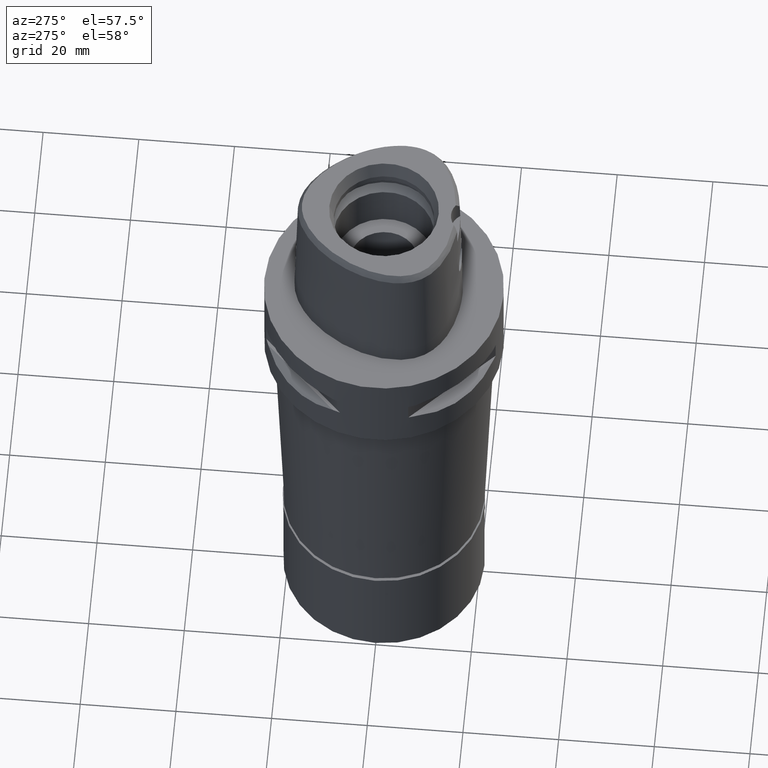
[diagram: clean part render]
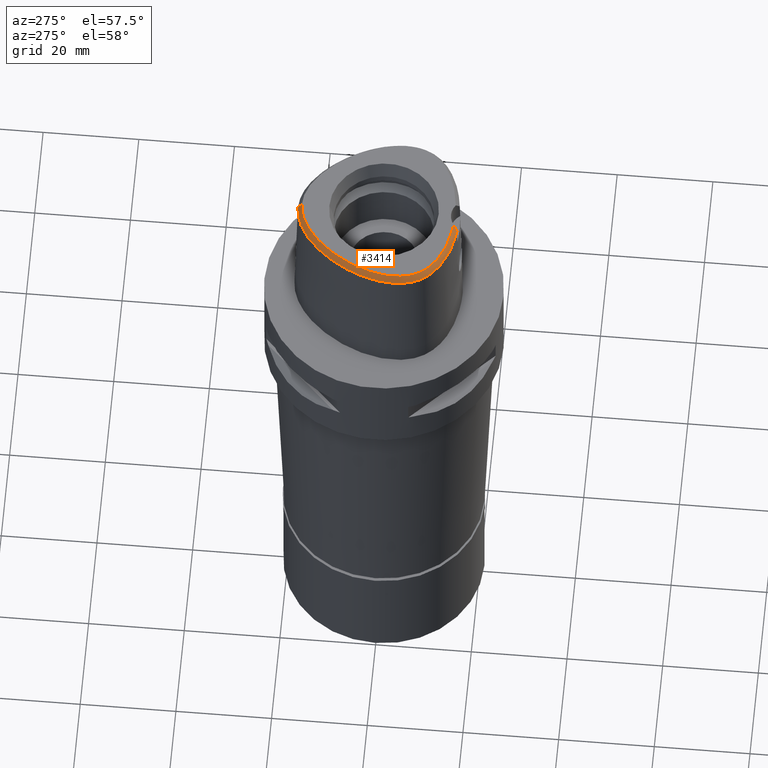
[diagram: same view with one face highlighted and labeled with its STEP entity id]
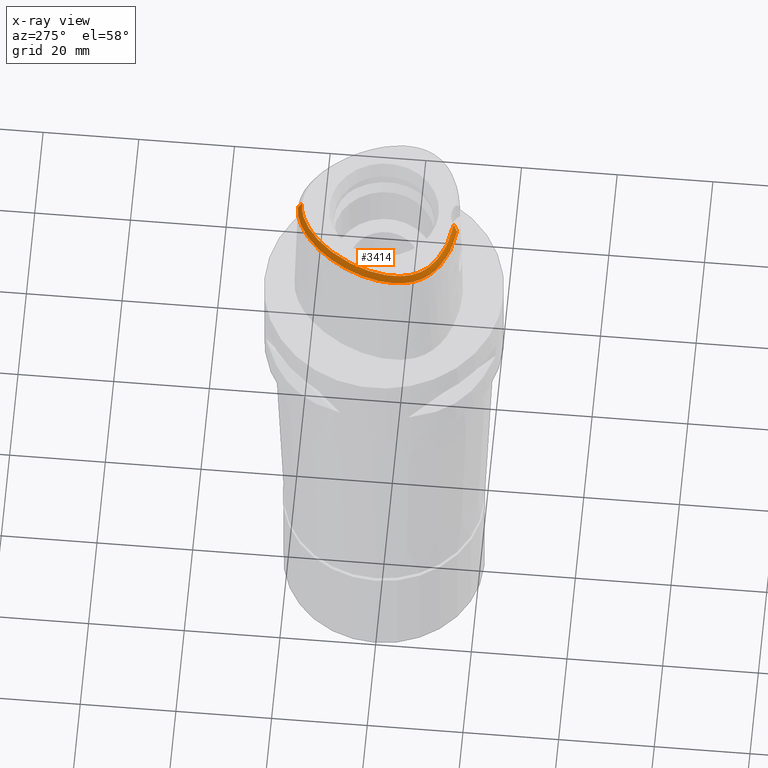
[diagram: x-ray of the same camera — body ghosted, the highlighted face saturated]
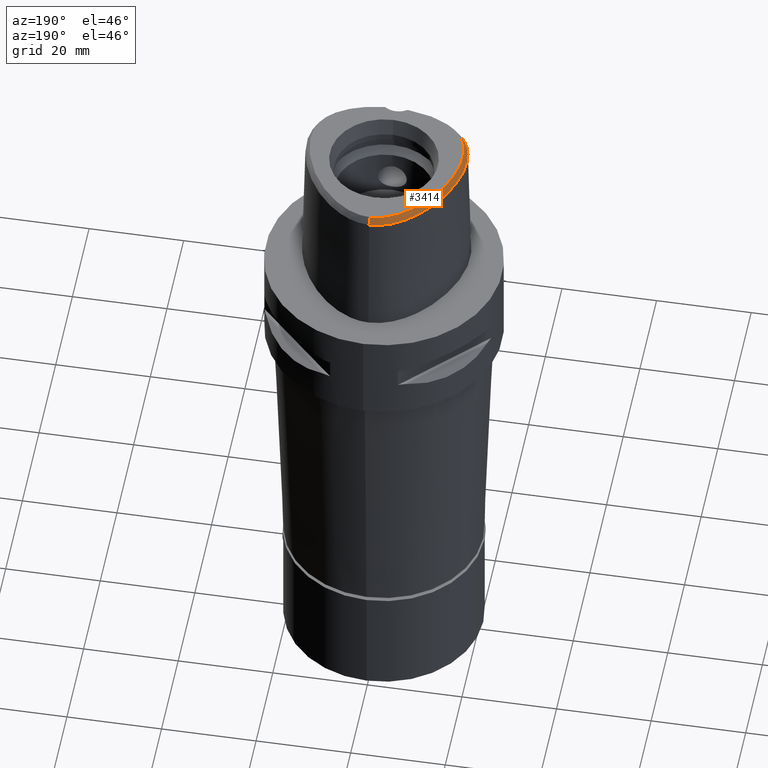
[diagram: same view with one face highlighted and labeled with its STEP entity id]
A machine part, auxiliary view. The second image highlights one B-rep face of the part: STEP entity #3414.
The next image is the same camera in x-ray: the body ghosted, the highlighted face saturated — about 0% of this face is hidden behind the body in this view.
A second angle (auxiliary view) of the same face is appended — the face is thin or edge-on in the first view.
In plain terms, the highlighted face is a freeform B-spline surface patch.
Its self-contained STEP definition (entity closure, byte-faithful):
#4 = CARTESIAN_POINT ( 'NONE',  ( -15.82616458324999975, -7.951650958911000266, 28.96280723235000210 ) ) ;
#6 = VERTEX_POINT ( 'NONE', #270 ) ;
#27 = CARTESIAN_POINT ( 'NONE',  ( -15.09828436381999950, 4.329476041618000259, 28.96280688155999883 ) ) ;
#46 = CARTESIAN_POINT ( 'NONE',  ( -16.66521519304999899, -4.421307663114999897, 28.96280763437000161 ) ) ;
#71 = CARTESIAN_POINT ( 'NONE',  ( -3.168920966622999824, -15.55911077538999976, 28.52071192346999950 ) ) ;
#72 = CARTESIAN_POINT ( 'NONE',  ( -16.57519824948999698, -5.235486284562999693, 28.96280704783999838 ) ) ;
#94 = CARTESIAN_POINT ( 'NONE',  ( -15.55817411495999991, -8.516750222181999064, 28.96280676916999752 ) ) ;
#99 = CARTESIAN_POINT ( 'NONE',  ( -6.862723739081268093, 14.51536572209313114, 29.99999999999658584 ) ) ;
#117 = CARTESIAN_POINT ( 'NONE',  ( -7.855384565159998722, -13.95165992033000002, 29.55784770277000106 ) ) ;
#123 = VECTOR ( 'NONE', #549, 1000.000000000000000 ) ;
#124 = CARTESIAN_POINT ( 'NONE',  ( -2.411640998825917759, 16.81591728050882040, 29.99999999999164757 ) ) ;
#144 = CARTESIAN_POINT ( 'NONE',  ( -15.07117015427892426, -9.793013966485411004, 28.52071192347006345 ) ) ;
#146 = CARTESIAN_POINT ( 'NONE',  ( -6.803687642896000476, -14.62067264486000084, 28.96280951766999934 ) ) ;
#152 = CARTESIAN_POINT ( 'NONE',  ( -1.772880577022724946, 16.97196055716294438, 29.99999999998829026 ) ) ;
#172 = CARTESIAN_POINT ( 'NONE',  ( -13.23131917684000136, -11.83574955101000015, 28.36776702319999899 ) ) ;
#193 = CARTESIAN_POINT ( 'NONE',  ( -15.19244765884999993, -9.756297961205000036, 28.36776705171000046 ) ) ;
#200 = CARTESIAN_POINT ( 'NONE',  ( -4.498660734199969369, 15.99814720006455993, 29.99999999998820499 ) ) ;
#219 = CARTESIAN_POINT ( 'NONE',  ( -2.427645563283000296, -15.38767134547000026, 28.96280757782000137 ) ) ;
#230 = CARTESIAN_POINT ( 'NONE',  ( -11.84909976177999980, 10.74246037936000064, 28.36776791819000110 ) ) ;
#258 = CARTESIAN_POINT ( 'NONE',  ( -6.811028038634999504, 14.44701312735000087, 30.15288670469999843 ) ) ;
#270 = CARTESIAN_POINT ( 'NONE',  ( -3.094719018046000398E-11, 17.98202997909999823, 28.52071728569000086 ) ) ;
#283 = CARTESIAN_POINT ( 'NONE',  ( -7.645105914410000203, 13.77888594686000090, 30.15288659478999733 ) ) ;
#291 = EDGE_CURVE ( 'NONE', #6, #1160, #4264, .T. ) ;
#310 = CARTESIAN_POINT ( 'NONE',  ( -6.370248231668000471, 15.57752044756999865, 28.96280945826000064 ) ) ;
#338 = CARTESIAN_POINT ( 'NONE',  ( -1.960999301201999723, 17.86754072463000043, 28.36776750034999850 ) ) ;
#358 = CARTESIAN_POINT ( 'NONE',  ( -15.95689012543999930, 1.812602601325000062, 28.96280924446000071 ) ) ;
#379 = CARTESIAN_POINT ( 'NONE',  ( -15.51988272610999964, -7.819381891665999618, 29.55784692195000218 ) ) ;
#402 = CARTESIAN_POINT ( 'NONE',  ( -15.95560155776000144, -1.665430541314000035, 30.15288669825000056 ) ) ;
#422 = CARTESIAN_POINT ( 'NONE',  ( -16.02722430935999753, -2.633782397125999708, 30.15288664891000181 ) ) ;
#444 = CARTESIAN_POINT ( 'NONE',  ( -14.47948466248000088, 4.080426398474000571, 30.15288666326000211 ) ) ;
#445 = CARTESIAN_POINT ( 'NONE',  ( -9.750168658359971374, -12.92810664734148496, 29.99999999999779021 ) ) ;
#466 = CARTESIAN_POINT ( 'NONE',  ( -11.99580722021000057, -11.52291329462000036, 30.15288656998000150 ) ) ;
#472 = CARTESIAN_POINT ( 'NONE',  ( -11.11900396222793219, 10.19116357425952124, 29.99999999999465672 ) ) ;
#489 = CARTESIAN_POINT ( 'NONE',  ( -5.902447850708562704, -15.16907854011714996, 28.52071192347006701 ) ) ;
#490 = CARTESIAN_POINT ( 'NONE',  ( -12.80899667931999986, -11.31924312694000001, 29.55784678121000297 ) ) ;
#498 = FACE_OUTER_BOUND ( 'NONE', #510, .T. ) ;
#510 = EDGE_LOOP ( 'NONE', ( #709, #2976, #4627, #1988 ) ) ;
#511 = CARTESIAN_POINT ( 'NONE',  ( -13.81338275218999989, -11.32636139868999869, 28.36776702830999852 ) ) ;
#539 = CARTESIAN_POINT ( 'NONE',  ( -10.87788252531000133, -13.00815216014999898, 28.96280694630999974 ) ) ;
#549 = DIRECTION ( 'NONE',  ( -1.891491732662029820E-11, -0.4887572537803078765, 0.8724198226067148010 ) ) ;
#565 = CARTESIAN_POINT ( 'NONE',  ( -10.55928178456000133, -12.42202099825999895, 30.15288665372000310 ) ) ;
#570 = CARTESIAN_POINT ( 'NONE',  ( -16.12543283909296576, -3.535877041747994554, 29.99999999999552713 ) ) ;
#612 = CARTESIAN_POINT ( 'NONE',  ( -1.918130257037999886, -14.75870030192000115, 30.15288656173999726 ) ) ;
#623 = CARTESIAN_POINT ( 'NONE',  ( -4.610281052942999835, 16.21946023873999820, 29.55784821680000007 ) ) ;
#640 = CARTESIAN_POINT ( 'NONE',  ( -1.990059182041999719, -15.75619046626999875, 28.36776807453000160 ) ) ;
#649 = CARTESIAN_POINT ( 'NONE',  ( -5.214643969542000157, 15.51248734998000067, 30.15288604392999972 ) ) ;
#672 = CARTESIAN_POINT ( 'NONE',  ( -4.760497172916999808, 16.51729835947000069, 28.96281026978000384 ) ) ;
#686 = VERTEX_POINT ( 'NONE', #4761 ) ;
#705 = CARTESIAN_POINT ( 'NONE',  ( -2.478711444001000075, 17.05456116777999753, 29.55784677016000117 ) ) ;
#709 = ORIENTED_EDGE ( 'NONE', *, *, #2033, .T. ) ;
#727 = CARTESIAN_POINT ( 'NONE',  ( -15.94943733973000199, -6.602874888986000279, 29.55784679567000239 ) ) ;
#743 = CARTESIAN_POINT ( 'NONE',  ( -16.37921363750999859, -7.455390574516000513, 28.36776744023000063 ) ) ;
#765 = CARTESIAN_POINT ( 'NONE',  ( -16.28733587441999831, -1.630668468060999965, 29.55784667121999831 ) ) ;
#788 = CARTESIAN_POINT ( 'NONE',  ( -14.53860686616000031, 5.621269239906999893, 28.96280763308000061 ) ) ;
#810 = CARTESIAN_POINT ( 'NONE',  ( -16.44222712326000035, -5.990910623890999709, 28.96280687039000057 ) ) ;
#830 = CARTESIAN_POINT ( 'NONE',  ( -5.560394104219000155, -14.92537653472999892, 28.96280769918000075 ) ) ;
#838 = CARTESIAN_POINT ( 'NONE',  ( -14.44611813752946361, -9.226676124714305871, 29.99999999998418687 ) ) ;
#857 = CARTESIAN_POINT ( 'NONE',  ( -13.84416648620999979, -10.35313269313000006, 29.55784680200000025 ) ) ;
#862 = CARTESIAN_POINT ( 'NONE',  ( -13.18915979441830011, -10.65722997877029776, 29.99999999999252509 ) ) ;
#877 = CARTESIAN_POINT ( 'NONE',  ( -14.26907056455793388, -10.79012254419233408, 28.52071192347006345 ) ) ;
#878 = CARTESIAN_POINT ( 'NONE',  ( -11.84878524587999848, -12.82635584698999942, 28.36776779267000137 ) ) ;
#886 = CARTESIAN_POINT ( 'NONE',  ( -0.04061050364168999893, 17.07281157582999853, 30.15288662076000392 ) ) ;
#899 = CARTESIAN_POINT ( 'NONE',  ( -7.523733151595170199, 15.26501052509955336, 28.52071192347006345 ) ) ;
#900 = CARTESIAN_POINT ( 'NONE',  ( -14.37621155583000032, -9.177067940763000919, 30.15288665754000164 ) ) ;
#901 = CARTESIAN_POINT ( 'NONE',  ( -2.535517866335866621, -14.79323888261836117, 29.99999999999856826 ) ) ;
#908 = CARTESIAN_POINT ( 'NONE',  ( -0.04373556623100999935, 17.73996657542000221, 28.96280716989000226 ) ) ;
#926 = CARTESIAN_POINT ( 'NONE',  ( -9.713799799202000429, -12.85050464409999904, 30.15288667085000185 ) ) ;
#933 = CARTESIAN_POINT ( 'NONE',  ( -14.01158736113173475, 5.375902008632595042, 29.99999999998754063 ) ) ;
#960 = CARTESIAN_POINT ( 'NONE',  ( 0.3019710292323000145, 17.06352212583000139, 30.15288664421000320 ) ) ;
#981 = CARTESIAN_POINT ( 'NONE',  ( -12.68538167306000020, 9.572420817111998659, 28.36776844542000120 ) ) ;
#1001 = CARTESIAN_POINT ( 'NONE',  ( -1.942106565373000082, -15.09119702337000035, 29.55784706600000078 ) ) ;
#1008 = CARTESIAN_POINT ( 'NONE',  ( -13.18475055781000016, 8.169029940477999574, 28.96280700211000081 ) ) ;
#1022 = B_SPLINE_SURFACE_WITH_KNOTS ( 'NONE', 3, 3, ( 
 ( #4263, #3205, #3891, #3178 ),
 ( #960, #2471, #3103, #1248 ),
 ( #886, #2396, #908, #3527 ),
 ( #1654, #3154, #4667, #1835 ),
 ( #4799, #1399, #2153, #4448 ),
 ( #2494, #2916, #1753, #338 ),
 ( #4395, #705, #2526, #4827 ),
 ( #4025, #2550, #1779, #2128 ),
 ( #3260, #4049, #1425, #2943 ),
 ( #1062, #623, #672, #4423 ),
 ( #649, #2578, #3648, #2104 ),
 ( #3314, #4078, #310, #2206 ),
 ( #258, #3703, #3340, #4847 ),
 ( #283, #2178, #3235, #1448 ),
 ( #2964, #4743, #2889, #3675 ),
 ( #1036, #3285, #1348, #1809 ),
 ( #4475, #1085, #2606, #4102 ),
 ( #3602, #2859, #4769, #230 ),
 ( #1728, #3999, #4363, #981 ),
 ( #3626, #1373, #1008, #1855 ),
 ( #2665, #2313, #1519, #2641 ),
 ( #4517, #4536, #788, #3726 ),
 ( #444, #2688, #27, #2269 ),
 ( #3811, #3006, #3027, #1949 ),
 ( #2291, #1191, #358, #3408 ),
 ( #1498, #1107, #3361, #1125 ),
 ( #3386, #3767, #4144, #1901 ),
 ( #402, #765, #1151, #4164 ),
 ( #422, #4496, #3790, #1923 ),
 ( #1173, #1880, #3745, #3451 ),
 ( #3427, #1571, #46, #1546 ),
 ( #3052, #4561, #72, #4187 ),
 ( #3075, #2988, #810, #4582 ),
 ( #2709, #727, #2624, #2229 ),
 ( #4868, #1474, #4124, #743 ),
 ( #2247, #379, #4, #1645 ),
 ( #3474, #1617, #94, #3884 ),
 ( #3096, #1213, #3567, #2803 ),
 ( #900, #2733, #1590, #193 ),
 ( #2047, #3838, #1670, #4230 ),
 ( #3147, #857, #4633, #3171 ),
 ( #1692, #3545, #4660, #511 ),
 ( #1262, #490, #2780, #172 ),
 ( #466, #4681, #2367, #4277 ),
 ( #3863, #1239, #1285, #878 ),
 ( #565, #2072, #539, #4304 ),
 ( #926, #1972, #1993, #2442 ),
 ( #3940, #3493, #4256, #2411 ),
 ( #3194, #117, #4708, #4604 ),
 ( #3910, #1313, #146, #2759 ),
 ( #4206, #3120, #830, #2388 ),
 ( #2338, #2018, #3518, #4386 ),
 ( #1026, #3276, #4818, #2119 ),
 ( #2485, #4016, #219, #3592 ),
 ( #3617, #3225, #3965, #1745 ),
 ( #612, #1001, #4760, #640 ) ),
 .UNSPECIFIED., .F., .F., .F.,
 ( 4, 1, 1, 1, 1, 1, 1, 1, 1, 1, 1, 1, 1, 1, 1, 1, 1, 1, 1, 1, 1, 1, 1, 1, 1, 1, 1, 1, 1, 1, 1, 1, 1, 1, 1, 1, 1, 1, 1, 1, 1, 1, 1, 1, 1, 1, 1, 1, 1, 1, 1, 1, 1, 4 ),
 ( 4, 4 ),
 ( -0.01581534407490000141, 0.0000000000000000000, 0.01988866185210999907, 0.03977732370550000202, 0.05966598555888999456, 0.07955464741227999403, 0.09944330926566999351, 0.1193319711189999993, 0.1392206329725000080, 0.1591092948258999995, 0.1789979566792000154, 0.1988866185326000069, 0.2187752803859999984, 0.2386639422393999899, 0.2585526040928000091, 0.2784412659462000006, 0.2983299277995000165, 0.3182185896529999836, 0.3381072515063999750, 0.3579959133596999910, 0.3778845752130999824, 0.3977732370665000294, 0.4176618989199999965, 0.4375505607732999569, 0.4574392226267000039, 0.4773278844800999954, 0.4972165463333999558, 0.5171052081869000894, 0.5369938700402999698, 0.5568825318935999302, 0.5767711937470000327, 0.5966598556004999443, 0.6165485174538000157, 0.6364371793072000072, 0.6563258411605999987, 0.6762145030139999902, 0.6961031648674000927, 0.7159918267207999731, 0.7358804885742000756, 0.7557691504275000360, 0.7756578122808999165, 0.7955464741344000501, 0.8154351359877000105, 0.8353237978411000020, 0.8552124596944999935, 0.8751011215478000649, 0.8949897834012999764, 0.9148784452547000789, 0.9347671071080999594, 0.9546557689613999198, 0.9745444308149000534, 0.9944330926682999339, 1.000000000000000000, 1.006911813929000088 ),
 ( -0.08014543927775000243, 1.080180916243999922 ),
 .UNSPECIFIED. ) ;
#1026 = CARTESIAN_POINT ( 'NONE',  ( -3.113205750677000339, -14.65054887650000026, 30.15288658693000201 ) ) ;
#1036 = CARTESIAN_POINT ( 'NONE',  ( -9.358414505273001893, 12.14707856763999949, 30.15288647660999999 ) ) ;
#1039 = B_SPLINE_CURVE_WITH_KNOTS ( 'NONE', 3,
 ( #1646, #901, #2781, #4279, #2413, #1288, #2806, #3812, #445, #3076, #4583, #4208, #3843, #862, #1220, #2026, #838, #3152, #1977, #1245, #4665, #2764, #1196, #2448, #3947, #570, #2714, #4311, #4212, #2345, #4236, #1675, #2077, #933, #3101, #4261, #1267, #472, #2810, #4610, #1294, #3479, #99, #3203, #3572, #200, #2740, #1595, #124, #152, #2785, #2372, #4688, #1700 ),
 .UNSPECIFIED., .F., .F.,
 ( 4, 1, 1, 1, 1, 1, 1, 1, 1, 1, 1, 1, 1, 1, 1, 1, 1, 1, 1, 1, 1, 1, 1, 1, 1, 1, 1, 1, 1, 1, 1, 1, 1, 1, 1, 1, 1, 1, 1, 1, 1, 1, 1, 1, 1, 1, 1, 1, 1, 1, 1, 4 ),
 ( 0.0000000000000000000, 0.005566907331700066131, 0.02545556918509994659, 0.04534423103860008020, 0.06523289289190004059, 0.08512155474529992105, 0.1050102165987000236, 0.1248988784521999351, 0.1447875403055000065, 0.1646762021588999980, 0.1845648640122999895, 0.2044535258655999499, 0.2243421877191000835, 0.2442308495724999640, 0.2641195114257999244, 0.2840081732792000269, 0.3038968351325999073, 0.3237854969860000098, 0.3436741588394000013, 0.3635628206927999928, 0.3834514825461999843, 0.4033401443995000557, 0.4232288062529999673, 0.4431174681064000698, 0.4630061299597000302, 0.4828947918130999106, 0.5027834536666000442, 0.5226721155199000046, 0.5425607773732999961, 0.5624494392267000986, 0.5823381010799999480, 0.6022267629334999706, 0.6221154247869000731, 0.6420040866403000646, 0.6618927484936000250, 0.6817814103470000164, 0.7016700722005000390, 0.7215587340537999994, 0.7414473959071999909, 0.7613360577605999824, 0.7812247196139999739, 0.8011133814673999654, 0.8210020433207999568, 0.8408907051741000283, 0.8607793670275000197, 0.8806680288810000423, 0.9005566907343299787, 0.9204453525877199782, 0.9403340144411099777, 0.9602226762944999772, 0.9801113381478899766, 1.000000000000000000 ),
 .UNSPECIFIED. ) ;
#1052 = CARTESIAN_POINT ( 'NONE',  ( -1.893775706183934870, 17.84807082153901447, 28.52071192347006345 ) ) ;
#1062 = CARTESIAN_POINT ( 'NONE',  ( -4.460064932968000662, 15.92162211800999749, 30.15288616382000342 ) ) ;
#1085 = CARTESIAN_POINT ( 'NONE',  ( -10.46858829200000152, 11.40248619922000017, 29.55784667997999904 ) ) ;
#1107 = CARTESIAN_POINT ( 'NONE',  ( -15.93171352685000208, 0.5435243470202000271, 29.55784790088000236 ) ) ;
#1125 = CARTESIAN_POINT ( 'NONE',  ( -16.58285866456000335, 0.6884044051377999907, 28.36777115652000347 ) ) ;
#1151 = CARTESIAN_POINT ( 'NONE',  ( -16.61907019108000227, -1.595906394807999895, 28.96280664418000228 ) ) ;
#1160 = VERTEX_POINT ( 'NONE', #3248 ) ;
#1173 = CARTESIAN_POINT ( 'NONE',  ( -16.03973735873999829, -3.534554997019999867, 30.15288662350999971 ) ) ;
#1191 = CARTESIAN_POINT ( 'NONE',  ( -15.63583957287999837, 1.722229259239000054, 29.55784777970999855 ) ) ;
#1196 = CARTESIAN_POINT ( 'NONE',  ( -15.87300767660877021, -5.872112237379327304, 29.99999999999299050 ) ) ;
#1213 = CARTESIAN_POINT ( 'NONE',  ( -14.97488345936999998, -8.873750317146999578, 29.55784685504999842 ) ) ;
#1220 = CARTESIAN_POINT ( 'NONE',  ( -13.66338899148678365, -10.18351204678907784, 29.99999999999110756 ) ) ;
#1239 = CARTESIAN_POINT ( 'NONE',  ( -11.49496394898000062, -12.26076530870000170, 29.55784698964999890 ) ) ;
#1245 = CARTESIAN_POINT ( 'NONE',  ( -15.29229544370078031, -7.721097396978812810, 29.99999999998815525 ) ) ;
#1248 = CARTESIAN_POINT ( 'NONE',  ( 0.3389017695880999770, 18.06308391446999906, 28.36776719414000070 ) ) ;
#1261 = CARTESIAN_POINT ( 'NONE',  ( -13.75951393052763549, 7.944084103041840983, 28.52071192347006345 ) ) ;
#1262 = CARTESIAN_POINT ( 'NONE',  ( -12.59783543055999999, -11.06098991490999950, 30.15288666022000186 ) ) ;
#1267 = CARTESIAN_POINT ( 'NONE',  ( -11.92713521269468480, 9.060544494664362958, 29.99999999999015188 ) ) ;
#1285 = CARTESIAN_POINT ( 'NONE',  ( -11.67187459742999955, -12.54356057784000100, 28.96280739116000191 ) ) ;
#1288 = CARTESIAN_POINT ( 'NONE',  ( -6.650243356161010588, -14.05992414833523618, 29.99999999999325340 ) ) ;
#1294 = CARTESIAN_POINT ( 'NONE',  ( -8.556928701966134199, 13.07433695899186432, 29.99999999999417000 ) ) ;
#1313 = CARTESIAN_POINT ( 'NONE',  ( -6.715656330300999954, -14.29897004363999891, 29.55784789618000019 ) ) ;
#1348 = CARTESIAN_POINT ( 'NONE',  ( -9.844449308627000406, 12.60394695324999859, 28.96280814779000323 ) ) ;
#1373 = CARTESIAN_POINT ( 'NONE',  ( -12.89889023421000047, 7.997228847763000914, 29.55784682379999850 ) ) ;
#1399 = CARTESIAN_POINT ( 'NONE',  ( -1.194488784170999907, 17.32413455885999909, 29.55784674500000264 ) ) ;
#1425 = CARTESIAN_POINT ( 'NONE',  ( -4.000576813871999704, 16.87012470410000020, 28.96280760115000064 ) ) ;
#1448 = CARTESIAN_POINT ( 'NONE',  ( -8.293561450566000914, 14.54095119992000029, 28.36776772170999905 ) ) ;
#1474 = CARTESIAN_POINT ( 'NONE',  ( -15.75000809654999934, -7.233351000392000074, 29.55784689417999900 ) ) ;
#1495 = CARTESIAN_POINT ( 'NONE',  ( -2.406542353497000075, -14.80491723099000012, 30.00000000000000000 ) ) ;
#1498 = CARTESIAN_POINT ( 'NONE',  ( -15.60614095798999834, 0.4710843179614000453, 30.15288627305999825 ) ) ;
#1519 = CARTESIAN_POINT ( 'NONE',  ( -13.89775639500999915, 6.908497766871000145, 28.96280723146000113 ) ) ;
#1546 = CARTESIAN_POINT ( 'NONE',  ( -16.99779404012000228, -4.447115826749000078, 28.36776817539999840 ) ) ;
#1571 = CARTESIAN_POINT ( 'NONE',  ( -16.33263634598000280, -4.395499499480000516, 29.55784709333000038 ) ) ;
#1573 = VERTEX_POINT ( 'NONE', #3161 ) ;
#1590 = CARTESIAN_POINT ( 'NONE',  ( -14.92036895783999917, -9.563221287724001485, 28.96280692031999848 ) ) ;
#1595 = CARTESIAN_POINT ( 'NONE',  ( -3.077178008231854278, 16.60571267458597688, 29.99999999999571543 ) ) ;
#1614 = CARTESIAN_POINT ( 'NONE',  ( -8.702202515497358348, -14.36510996956317321, 28.52071192347006345 ) ) ;
#1617 = CARTESIAN_POINT ( 'NONE',  ( -15.26175691011000168, -8.363621453856001864, 29.55784672449999917 ) ) ;
#1645 = CARTESIAN_POINT ( 'NONE',  ( -16.13244644039000164, -8.083920026154999050, 28.36776754274999846 ) ) ;
#1646 = CARTESIAN_POINT ( 'NONE',  ( -2.406542353497000075, -14.80491723099000012, 30.00000000000000000 ) ) ;
#1654 = CARTESIAN_POINT ( 'NONE',  ( -0.5619083371156999851, 17.05462221282000002, 30.15288666666999973 ) ) ;
#1670 = CARTESIAN_POINT ( 'NONE',  ( -14.53055861697999873, -10.07515980398000011, 28.96280732949000125 ) ) ;
#1675 = CARTESIAN_POINT ( 'NONE',  ( -15.02099409650901052, 2.867135356161205184, 29.99999999999500844 ) ) ;
#1692 = CARTESIAN_POINT ( 'NONE',  ( -13.13069059020000040, -10.59455432554000076, 30.15288665974000182 ) ) ;
#1700 = CARTESIAN_POINT ( 'NONE',  ( -6.301949014297999984E-11, 17.15328888647999861, 30.00000000000000000 ) ) ;
#1728 = CARTESIAN_POINT ( 'NONE',  ( -11.85611240492000107, 9.012598482973000813, 30.15288652699999972 ) ) ;
#1744 = CARTESIAN_POINT ( 'NONE',  ( -3.094719018046000398E-11, 17.98202997909999823, 28.52071728569000086 ) ) ;
#1745 = CARTESIAN_POINT ( 'NONE',  ( -2.156931512220999991, -15.74415521295999909, 28.36776809587999892 ) ) ;
#1753 = CARTESIAN_POINT ( 'NONE',  ( -1.892419543001999882, 17.54105184586000021, 28.96280720540999809 ) ) ;
#1779 = CARTESIAN_POINT ( 'NONE',  ( -3.270924459859000155, 17.15396488647000339, 28.96280634641000162 ) ) ;
#1809 = CARTESIAN_POINT ( 'NONE',  ( -10.08746671029999931, 12.83238114605000035, 28.36776898337999953 ) ) ;
#1835 = CARTESIAN_POINT ( 'NONE',  ( -0.6318772798566999471, 18.05306238243999672, 28.36776695431000306 ) ) ;
#1855 = CARTESIAN_POINT ( 'NONE',  ( -13.47061088140999985, 8.340831033193000010, 28.36776718041999956 ) ) ;
#1880 = CARTESIAN_POINT ( 'NONE',  ( -16.37326696940000303, -3.539700438315000142, 29.55784688738999932 ) ) ;
#1901 = CARTESIAN_POINT ( 'NONE',  ( -16.80513031161000015, -0.4683517767926999587, 28.36776824612000070 ) ) ;
#1923 = CARTESIAN_POINT ( 'NONE',  ( -17.02687944407000131, -2.588537606201999797, 28.36776714395000099 ) ) ;
#1949 = CARTESIAN_POINT ( 'NONE',  ( -15.88683788095999994, 3.162617858688999917, 28.36776718059000046 ) ) ;
#1972 = CARTESIAN_POINT ( 'NONE',  ( -9.855348587832999385, -13.15253417729000063, 29.55784675049000043 ) ) ;
#1977 = CARTESIAN_POINT ( 'NONE',  ( -15.04149970408061066, -8.249836848502045683, 29.99999999999276667 ) ) ;
#1988 = ORIENTED_EDGE ( 'NONE', *, *, #4347, .F. ) ;
#1993 = CARTESIAN_POINT ( 'NONE',  ( -9.996897376463000029, -13.45456371049000133, 28.96280683012999901 ) ) ;
#2018 = CARTESIAN_POINT ( 'NONE',  ( -4.189569718250999664, -14.84390090312999888, 29.55784666871999988 ) ) ;
#2019 = B_SPLINE_CURVE_WITH_KNOTS ( 'NONE', 3,
 ( #1495, #2622, #4121, #4514 ),
 .UNSPECIFIED., .F., .F.,
 ( 4, 4 ),
 ( 0.0000000000000000000, 1.000000000000000000 ),
 .UNSPECIFIED. ) ;
#2026 = CARTESIAN_POINT ( 'NONE',  ( -14.08052509618960357, -9.706873108419410201, 29.99999999998713918 ) ) ;
#2033 = EDGE_CURVE ( 'NONE', #686, #1160, #1039, .T. ) ;
#2046 = CARTESIAN_POINT ( 'NONE',  ( -16.01658395503946153, -8.155509241189948355, 28.52071192347006345 ) ) ;
#2047 = CARTESIAN_POINT ( 'NONE',  ( -14.01418824711999989, -9.652586087987998553, 30.15288659722999753 ) ) ;
#2072 = CARTESIAN_POINT ( 'NONE',  ( -10.71858215494000000, -12.71508657920000118, 29.55784680000999742 ) ) ;
#2077 = CARTESIAN_POINT ( 'NONE',  ( -14.55898035934431967, 4.112421202111865348, 29.99999999998995293 ) ) ;
#2104 = CARTESIAN_POINT ( 'NONE',  ( -5.719369357919999786, 16.37657448127000137, 28.36777360279999982 ) ) ;
#2119 = CARTESIAN_POINT ( 'NONE',  ( -3.230793554439999937, -15.64390542121000038, 28.36776780565000067 ) ) ;
#2128 = CARTESIAN_POINT ( 'NONE',  ( -3.382077209892000003, 17.46849834269999846, 28.36776614852999856 ) ) ;
#2143 = CARTESIAN_POINT ( 'NONE',  ( -0.6295828121026221247, 17.98203011041624322, 28.52071192347006345 ) ) ;
#2153 = CARTESIAN_POINT ( 'NONE',  ( -1.240699191857000061, 17.65453971774999786, 28.96280681725999884 ) ) ;
#2178 = CARTESIAN_POINT ( 'NONE',  ( -7.861257759794999522, 14.03290769788000070, 29.55784697042999909 ) ) ;
#2206 = CARTESIAN_POINT ( 'NONE',  ( -6.555483307209999388, 15.85491500638000062, 28.36777104565999963 ) ) ;
#2229 = CARTESIAN_POINT ( 'NONE',  ( -16.59214339898000290, -6.782054602961999912, 28.36776707657999808 ) ) ;
#2247 = CARTESIAN_POINT ( 'NONE',  ( -15.21360086897000130, -7.687112824421999946, 30.15288661155000227 ) ) ;
#2269 = CARTESIAN_POINT ( 'NONE',  ( -15.40768421449000058, 4.454000863190000103, 28.36776699070999896 ) ) ;
#2291 = CARTESIAN_POINT ( 'NONE',  ( -15.31478902031999922, 1.631855917153000046, 30.15288631495999994 ) ) ;
#2313 = CARTESIAN_POINT ( 'NONE',  ( -13.60324199308000104, 6.751994931684000001, 29.55784692157000038 ) ) ;
#2338 = CARTESIAN_POINT ( 'NONE',  ( -4.136985311399999254, -14.51455232590000044, 30.15288669912000330 ) ) ;
#2345 = CARTESIAN_POINT ( 'NONE',  ( -15.68979199461908713, 0.4896967076520558626, 29.99999999998965095 ) ) ;
#2367 = CARTESIAN_POINT ( 'NONE',  ( -12.38425753149000030, -12.06532845117999919, 28.96280751442999701 ) ) ;
#2372 = CARTESIAN_POINT ( 'NONE',  ( -0.5679008307150424928, 17.14013367087610362, 29.99999999999042188 ) ) ;
#2387 = CARTESIAN_POINT ( 'NONE',  ( -16.99625270563107904, -3.273868231552532038, 28.52071192347006345 ) ) ;
#2388 = CARTESIAN_POINT ( 'NONE',  ( -5.630682941789999951, -15.25141021110999873, 28.36776827739999973 ) ) ;
#2396 = CARTESIAN_POINT ( 'NONE',  ( -0.04217303493635000261, 17.40638907562000171, 29.55784689532999820 ) ) ;
#2410 = CARTESIAN_POINT ( 'NONE',  ( -4.422474562381552232, 17.08283562090138119, 28.52071192347006345 ) ) ;
#2411 = CARTESIAN_POINT ( 'NONE',  ( -9.149269104808999131, -14.18648313783999981, 28.36776718832999933 ) ) ;
#2413 = CARTESIAN_POINT ( 'NONE',  ( -5.437876102062057626, -14.35707869331120712, 29.99999999999816680 ) ) ;
#2440 = CARTESIAN_POINT ( 'NONE',  ( -3.738627773282634514, -15.49270868799968603, 28.52071192347006701 ) ) ;
#2442 = CARTESIAN_POINT ( 'NONE',  ( -10.13844616509000041, -13.75659324368000114, 28.36776690976000026 ) ) ;
#2448 = CARTESIAN_POINT ( 'NONE',  ( -15.99949242929242565, -5.153835065649325919, 29.99999999999899813 ) ) ;
#2471 = CARTESIAN_POINT ( 'NONE',  ( 0.3142812760176000308, 17.39670938871000061, 29.55784682751999881 ) ) ;
#2483 = EDGE_CURVE ( 'NONE', #1573, #6, #4798, .T. ) ;
#2485 = CARTESIAN_POINT ( 'NONE',  ( -2.368303355686999900, -14.72356655287000038, 30.15288656063999895 ) ) ;
#2494 = CARTESIAN_POINT ( 'NONE',  ( -1.755260026601999979, 16.88807408830999890, 30.15288661551999994 ) ) ;
#2526 = CARTESIAN_POINT ( 'NONE',  ( -2.568973343919000119, 17.37572275559999824, 28.96280687628999928 ) ) ;
#2550 = CARTESIAN_POINT ( 'NONE',  ( -3.159771709825999864, 16.83943143023999767, 29.55784654427999669 ) ) ;
#2578 = CARTESIAN_POINT ( 'NONE',  ( -5.382885765668000033, 15.80051639374000239, 29.55784856354999945 ) ) ;
#2606 = CARTESIAN_POINT ( 'NONE',  ( -10.72362788919999943, 11.61740749886000046, 28.96280666475000132 ) ) ;
#2622 = CARTESIAN_POINT ( 'NONE',  ( -2.674237912657792204, -15.00654602984653962, 29.59847415412516014 ) ) ;
#2624 = CARTESIAN_POINT ( 'NONE',  ( -16.27079036935999667, -6.692464745974000095, 28.96280693612999713 ) ) ;
#2641 = CARTESIAN_POINT ( 'NONE',  ( -14.19227079692999993, 7.065000602058000290, 28.36776754134999834 ) ) ;
#2665 = CARTESIAN_POINT ( 'NONE',  ( -13.30872759114999937, 6.595492096496999856, 30.15288661169000051 ) ) ;
#2688 = CARTESIAN_POINT ( 'NONE',  ( -14.78888451314999841, 4.204951220045999527, 29.55784677241000225 ) ) ;
#2709 = CARTESIAN_POINT ( 'NONE',  ( -15.62808431010999755, -6.513285031997999575, 30.15288665522000144 ) ) ;
#2714 = CARTESIAN_POINT ( 'NONE',  ( -16.11283982316462016, -2.629907404753665023, 29.99999999999255706 ) ) ;
#2733 = CARTESIAN_POINT ( 'NONE',  ( -14.64829025684000108, -9.370144614243001158, 29.55784678893000006 ) ) ;
#2740 = CARTESIAN_POINT ( 'NONE',  ( -3.771910472265300296, 16.33551310926748812, 29.99999999999048583 ) ) ;
#2758 = CARTESIAN_POINT ( 'NONE',  ( -15.58740380353834176, -8.999391780896363713, 28.52071192347006345 ) ) ;
#2759 = CARTESIAN_POINT ( 'NONE',  ( -6.891718955491000109, -14.94237524607999923, 28.36777113916000204 ) ) ;
#2764 = CARTESIAN_POINT ( 'NONE',  ( -15.71065119879416017, -6.536303815290276376, 29.99999999999222311 ) ) ;
#2779 = CARTESIAN_POINT ( 'NONE',  ( -10.91764528034727455, 11.98972044748609100, 28.52071192347006345 ) ) ;
#2780 = CARTESIAN_POINT ( 'NONE',  ( -13.02015792808000150, -11.57749633896999875, 28.96280690220000054 ) ) ;
#2781 = CARTESIAN_POINT ( 'NONE',  ( -3.123276563984683563, -14.73562494725068817, 29.99999999999281286 ) ) ;
#2785 = CARTESIAN_POINT ( 'NONE',  ( -1.160151454488844269, 17.07862209883292692, 29.99999999999161560 ) ) ;
#2803 = CARTESIAN_POINT ( 'NONE',  ( -15.54458318400000039, -9.221160904653000756, 28.36776729579000289 ) ) ;
#2806 = CARTESIAN_POINT ( 'NONE',  ( -7.776737509123765157, -13.71663015822503162, 29.99999999999581490 ) ) ;
#2810 = CARTESIAN_POINT ( 'NONE',  ( -10.27907733182379957, 11.24278573582550145, 29.99999999998999911 ) ) ;
#2859 = CARTESIAN_POINT ( 'NONE',  ( -11.31677855224000062, 10.34050356452999964, 29.55784702366000261 ) ) ;
#2889 = CARTESIAN_POINT ( 'NONE',  ( -8.957957314000999816, 13.49524605322999982, 28.96280865577000085 ) ) ;
#2916 = CARTESIAN_POINT ( 'NONE',  ( -1.823839784801999819, 17.21456296707999911, 29.55784691047000123 ) ) ;
#2943 = CARTESIAN_POINT ( 'NONE',  ( -4.131763178815000437, 17.17683250941000139, 28.36776812313000207 ) ) ;
#2964 = CARTESIAN_POINT ( 'NONE',  ( -8.497815384224001178, 13.01229317387999984, 30.15288640173999823 ) ) ;
#2976 = ORIENTED_EDGE ( 'NONE', *, *, #291, .F. ) ;
#2988 = CARTESIAN_POINT ( 'NONE',  ( -16.11566471999000072, -5.922755737701999479, 29.55784676765000185 ) ) ;
#3006 = CARTESIAN_POINT ( 'NONE',  ( -15.25554126085000028, 2.947178181813999931, 29.55784682384999584 ) ) ;
#3027 = CARTESIAN_POINT ( 'NONE',  ( -15.57118957090999878, 3.054898020251000101, 28.96280700221999993 ) ) ;
#3052 = CARTESIAN_POINT ( 'NONE',  ( -15.91463095045000209, -5.141799329787000161, 30.15288663875999831 ) ) ;
#3075 = CARTESIAN_POINT ( 'NONE',  ( -15.78910231672999842, -5.854600851511999160, 30.15288666491000313 ) ) ;
#3076 = CARTESIAN_POINT ( 'NONE',  ( -10.60021164902701862, -12.49731984709068300, 29.99999999999273470 ) ) ;
#3096 = CARTESIAN_POINT ( 'NONE',  ( -14.69003359706000111, -8.700045023392998900, 30.15288663469000241 ) ) ;
#3101 = CARTESIAN_POINT ( 'NONE',  ( -13.38439869301802787, 6.635703175841384471, 29.99999999999475975 ) ) ;
#3103 = CARTESIAN_POINT ( 'NONE',  ( 0.3265915228029000472, 17.72989665158999983, 28.96280701083000153 ) ) ;
#3119 = CARTESIAN_POINT ( 'NONE',  ( -11.33338053121870992, -13.08225253589922943, 28.52071192347006345 ) ) ;
#3120 = CARTESIAN_POINT ( 'NONE',  ( -5.490105266648000359, -14.59934285834000178, 29.55784712096000177 ) ) ;
#3145 = CARTESIAN_POINT ( 'NONE',  ( -16.79165457291126273, -0.3537785057483348594, 28.52071192347006345 ) ) ;
#3147 = CARTESIAN_POINT ( 'NONE',  ( -13.60088019082999899, -10.12486103392000025, 30.15288665303000215 ) ) ;
#3152 = CARTESIAN_POINT ( 'NONE',  ( -14.76322153899683798, -8.744676018999774314, 29.99999999999392841 ) ) ;
#3154 = CARTESIAN_POINT ( 'NONE',  ( -0.5852313180293999828, 17.38743560269000099, 29.55784676254999965 ) ) ;
#3155 = CARTESIAN_POINT ( 'NONE',  ( -3.094719018046000398E-11, 17.98202997909999823, 28.52071728569000086 ) ) ;
#3161 = CARTESIAN_POINT ( 'NONE',  ( -3.168920966622999824, -15.55911077538999976, 28.52071192346999950 ) ) ;
#3171 = CARTESIAN_POINT ( 'NONE',  ( -14.33073907695999871, -10.80967601156000057, 28.36776709994000001 ) ) ;
#3178 = CARTESIAN_POINT ( 'NONE',  ( 0.5138531063271000177, 18.05399898994999930, 28.36776684553999672 ) ) ;
#3194 = CARTESIAN_POINT ( 'NONE',  ( -7.749543122147999341, -13.63536214103999811, 30.15288634157000303 ) ) ;
#3203 = CARTESIAN_POINT ( 'NONE',  ( -6.047371482396579623, 15.09400374235804954, 29.99999999999454303 ) ) ;
#3205 = CARTESIAN_POINT ( 'NONE',  ( 0.4770932295370999832, 17.38832462275000168, 29.55784673308000166 ) ) ;
#3225 = CARTESIAN_POINT ( 'NONE',  ( -2.104921447155000180, -15.07945434770999960, 29.55784707179000392 ) ) ;
#3235 = CARTESIAN_POINT ( 'NONE',  ( -8.077409605180999819, 14.28692944890000049, 28.96280734607000085 ) ) ;
#3248 = CARTESIAN_POINT ( 'NONE',  ( -6.301949014297999984E-11, 17.15328888647999861, 30.00000000000000000 ) ) ;
#3260 = CARTESIAN_POINT ( 'NONE',  ( -3.738204083985999571, 16.25670909348000137, 30.15288655718999777 ) ) ;
#3276 = CARTESIAN_POINT ( 'NONE',  ( -3.152401685264999642, -14.98166772473999941, 29.55784699316999919 ) ) ;
#3285 = CARTESIAN_POINT ( 'NONE',  ( -9.601431906949999373, 12.37551276044000126, 29.55784731219999983 ) ) ;
#3314 = CARTESIAN_POINT ( 'NONE',  ( -5.999778080582999884, 15.02273132993999916, 30.15288628344999822 ) ) ;
#3340 = CARTESIAN_POINT ( 'NONE',  ( -7.213430750462000773, 14.97907419330999979, 28.96280660048000399 ) ) ;
#3361 = CARTESIAN_POINT ( 'NONE',  ( -16.25728609570999694, 0.6159643760790000089, 28.96280952869999936 ) ) ;
#3386 = CARTESIAN_POINT ( 'NONE',  ( -15.81766320708999629, -0.6301017892410999410, 30.15288654567000037 ) ) ;
#3408 = CARTESIAN_POINT ( 'NONE',  ( -16.27794067799000288, 1.902975943411000070, 28.36777070920999932 ) ) ;
#3414 = ADVANCED_FACE ( 'NONE', ( #498 ), #1022, .F. ) ;
#3427 = CARTESIAN_POINT ( 'NONE',  ( -16.00005749889999862, -4.369691335845999447, 30.15288655230000003 ) ) ;
#3451 = CARTESIAN_POINT ( 'NONE',  ( -17.04032619072000188, -3.549991320905000247, 28.36776741514999856 ) ) ;
#3474 = CARTESIAN_POINT ( 'NONE',  ( -14.96533970526000168, -8.210492685530999424, 30.15288667983000082 ) ) ;
#3479 = CARTESIAN_POINT ( 'NONE',  ( -7.700642921102748950, 13.84415306341581164, 29.99999999999059597 ) ) ;
#3493 = CARTESIAN_POINT ( 'NONE',  ( -8.901893559661999689, -13.56695563060999987, 29.55784682594999779 ) ) ;
#3518 = CARTESIAN_POINT ( 'NONE',  ( -4.242154125102000961, -15.17324948036999821, 28.96280663831000268 ) ) ;
#3527 = CARTESIAN_POINT ( 'NONE',  ( -0.04529809752567000303, 18.07354407521999917, 28.36776744446000365 ) ) ;
#3544 = CARTESIAN_POINT ( 'NONE',  ( -16.85489160761147787, -5.354527567564536739, 28.52071192347006345 ) ) ;
#3545 = CARTESIAN_POINT ( 'NONE',  ( -13.35825464419999875, -10.83849001658999889, 29.55784678260000220 ) ) ;
#3567 = CARTESIAN_POINT ( 'NONE',  ( -15.25973332168999974, -9.047455610900000167, 28.96280707541999888 ) ) ;
#3572 = CARTESIAN_POINT ( 'NONE',  ( -5.257871200569354642, 15.58649213537755074, 29.99999999999442579 ) ) ;
#3592 = CARTESIAN_POINT ( 'NONE',  ( -2.457316667080999828, -15.71972374177000020, 28.36776808641000258 ) ) ;
#3602 = CARTESIAN_POINT ( 'NONE',  ( -11.05061794747000015, 10.13952515712000135, 30.15288657638999936 ) ) ;
#3617 = CARTESIAN_POINT ( 'NONE',  ( -2.078916414621999831, -14.74710391508000029, 30.15288655975000154 ) ) ;
#3626 = CARTESIAN_POINT ( 'NONE',  ( -12.61302991061000078, 7.825427755049000567, 30.15288664549000330 ) ) ;
#3648 = CARTESIAN_POINT ( 'NONE',  ( -5.551127561793999909, 16.08854543750000232, 28.96281108316999919 ) ) ;
#3675 = CARTESIAN_POINT ( 'NONE',  ( -9.188028278889001754, 13.73672249291000114, 28.36776978278000172 ) ) ;
#3703 = CARTESIAN_POINT ( 'NONE',  ( -7.012229394548000094, 14.71304366032999944, 29.55784665258999766 ) ) ;
#3726 = CARTESIAN_POINT ( 'NONE',  ( -14.84095907344999965, 5.762036940656999562, 28.36776817338000001 ) ) ;
#3745 = CARTESIAN_POINT ( 'NONE',  ( -16.70679658006000068, -3.544845879609999972, 28.96280715126999894 ) ) ;
#3767 = CARTESIAN_POINT ( 'NONE',  ( -16.14681890859999669, -0.5761851184249999758, 29.55784711247999752 ) ) ;
#3790 = CARTESIAN_POINT ( 'NONE',  ( -16.69366106583999709, -2.603619203176999797, 28.96280697893999800 ) ) ;
#3811 = CARTESIAN_POINT ( 'NONE',  ( -14.93989295080000090, 2.839458343376000116, 30.15288664548000241 ) ) ;
#3812 = CARTESIAN_POINT ( 'NONE',  ( -8.809985523416465014, -13.33678107331294704, 29.99999999999955591 ) ) ;
#3838 = CARTESIAN_POINT ( 'NONE',  ( -14.27237343205000109, -9.863872945986001284, 29.55784696336000295 ) ) ;
#3843 = CARTESIAN_POINT ( 'NONE',  ( -12.65209017756316179, -11.12734424253271293, 29.99999999999206679 ) ) ;
#3863 = CARTESIAN_POINT ( 'NONE',  ( -11.31805330052999992, -11.97797003954999973, 30.15288658813999945 ) ) ;
#3884 = CARTESIAN_POINT ( 'NONE',  ( -15.85459131980999992, -8.669878990507999816, 28.36776681382999854 ) ) ;
#3891 = CARTESIAN_POINT ( 'NONE',  ( 0.4954731679320999449, 17.72116180635000049, 28.96280678931000097 ) ) ;
#3910 = CARTESIAN_POINT ( 'NONE',  ( -6.627625017704999344, -13.97726744242000052, 30.15288627469000104 ) ) ;
#3940 = CARTESIAN_POINT ( 'NONE',  ( -8.778205787087999923, -13.25719187699000123, 30.15288664476000235 ) ) ;
#3947 = CARTESIAN_POINT ( 'NONE',  ( -16.08550869467025635, -4.376322360225735508, 29.99999999999530687 ) ) ;
#3965 = CARTESIAN_POINT ( 'NONE',  ( -2.130926479687999642, -15.41180478032999979, 28.96280758382999920 ) ) ;
#3999 = CARTESIAN_POINT ( 'NONE',  ( -12.13253549430000078, 9.199205927686000095, 29.55784716647999844 ) ) ;
#4016 = CARTESIAN_POINT ( 'NONE',  ( -2.397974459485000320, -15.05561894916999854, 29.55784706923000016 ) ) ;
#4025 = CARTESIAN_POINT ( 'NONE',  ( -3.048618959793000016, 16.52489797401000260, 30.15288674214999887 ) ) ;
#4049 = CARTESIAN_POINT ( 'NONE',  ( -3.869390448928999859, 16.56341689879000256, 29.55784707917000276 ) ) ;
#4078 = CARTESIAN_POINT ( 'NONE',  ( -6.185013156125999778, 15.30012588874999935, 29.55784787084999721 ) ) ;
#4102 = CARTESIAN_POINT ( 'NONE',  ( -10.97866748639000001, 11.83232879849000163, 28.36776664952000004 ) ) ;
#4121 = CARTESIAN_POINT ( 'NONE',  ( -2.935844349986522772, -15.25651563093117247, 29.10537812861516116 ) ) ;
#4124 = CARTESIAN_POINT ( 'NONE',  ( -16.06461086703000163, -7.344370787453999405, 28.96280716721000204 ) ) ;
#4144 = CARTESIAN_POINT ( 'NONE',  ( -16.47597461010999709, -0.5222684476088000904, 28.96280767930000266 ) ) ;
#4164 = CARTESIAN_POINT ( 'NONE',  ( -16.95080450773999914, -1.561144321555000047, 28.36776661714000269 ) ) ;
#4187 = CARTESIAN_POINT ( 'NONE',  ( -16.90548189899999798, -5.282329761950999902, 28.36776725238999930 ) ) ;
#4206 = CARTESIAN_POINT ( 'NONE',  ( -5.419816429077999764, -14.27330918194999931, 30.15288654275000013 ) ) ;
#4208 = CARTESIAN_POINT ( 'NONE',  ( -12.04571048959667756, -11.59259605427087259, 29.99999999999559819 ) ) ;
#4212 = CARTESIAN_POINT ( 'NONE',  ( -15.90223487644192346, -0.6162487013684039283, 29.99999999998910383 ) ) ;
#4230 = CARTESIAN_POINT ( 'NONE',  ( -14.78874380190999993, -10.28644666197999946, 28.36776769560999867 ) ) ;
#4236 = CARTESIAN_POINT ( 'NONE',  ( -15.39727819201534054, 1.655076005306005182, 29.99999999999123546 ) ) ;
#4255 = CARTESIAN_POINT ( 'NONE',  ( -16.47905549557223637, -6.962316292879685342, 28.52071192347006345 ) ) ;
#4256 = CARTESIAN_POINT ( 'NONE',  ( -9.025581332235001142, -13.87671938421999940, 28.96280700714000034 ) ) ;
#4261 = CARTESIAN_POINT ( 'NONE',  ( -12.68647747556916805, 7.869569494477064886, 29.99999999998959055 ) ) ;
#4263 = CARTESIAN_POINT ( 'NONE',  ( 0.4587132911420999659, 17.05548743915999665, 30.15288667684999879 ) ) ;
#4264 = LINE ( 'NONE', #3155, #123 ) ;
#4277 = CARTESIAN_POINT ( 'NONE',  ( -12.57848268712999840, -12.33653602946000127, 28.36776798665000143 ) ) ;
#4279 = CARTESIAN_POINT ( 'NONE',  ( -4.150496093831746336, -14.59917355180408194, 29.99999999999444356 ) ) ;
#4304 = CARTESIAN_POINT ( 'NONE',  ( -11.03718289569000177, -13.30121774108999944, 28.36776709260999851 ) ) ;
#4311 = CARTESIAN_POINT ( 'NONE',  ( -16.04083576398081235, -1.656498942828378507, 29.99999999999030820 ) ) ;
#4347 = EDGE_CURVE ( 'NONE', #686, #1573, #2019, .T. ) ;
#4363 = CARTESIAN_POINT ( 'NONE',  ( -12.40895858368000049, 9.385813372398999377, 28.96280780594999982 ) ) ;
#4386 = CARTESIAN_POINT ( 'NONE',  ( -4.294738531953000482, -15.50259805760000020, 28.36776660790999927 ) ) ;
#4395 = CARTESIAN_POINT ( 'NONE',  ( -2.388449544083000031, 16.73339957994999949, 30.15288666404000040 ) ) ;
#4423 = CARTESIAN_POINT ( 'NONE',  ( -4.910713292891999870, 16.81513648019999962, 28.36777232275999694 ) ) ;
#4448 = CARTESIAN_POINT ( 'NONE',  ( -1.286909599541999905, 17.98494487664000019, 28.36776688951999859 ) ) ;
#4475 = CARTESIAN_POINT ( 'NONE',  ( -10.21354869480999916, 11.18756489959000078, 30.15288669522000120 ) ) ;
#4496 = CARTESIAN_POINT ( 'NONE',  ( -16.36044268759999909, -2.618700800151000152, 29.55784681392000124 ) ) ;
#4514 = CARTESIAN_POINT ( 'NONE',  ( -3.168920966622999824, -15.55911077538999976, 28.52071192346999950 ) ) ;
#4517 = CARTESIAN_POINT ( 'NONE',  ( -13.93390245157000074, 5.339733838406000466, 30.15288655247999827 ) ) ;
#4536 = CARTESIAN_POINT ( 'NONE',  ( -14.23625465887000097, 5.480501539156000135, 29.55784709278000122 ) ) ;
#4561 = CARTESIAN_POINT ( 'NONE',  ( -16.24491459996999865, -5.188642807174999483, 29.55784684329999834 ) ) ;
#4582 = CARTESIAN_POINT ( 'NONE',  ( -16.76878952651999910, -6.059065510081000916, 28.36776697312000195 ) ) ;
#4583 = CARTESIAN_POINT ( 'NONE',  ( -11.36350786442457483, -12.05063008428585114, 29.99999999998750866 ) ) ;
#4604 = CARTESIAN_POINT ( 'NONE',  ( -8.067067451184000149, -14.58425547890999852, 28.36777042517999803 ) ) ;
#4610 = CARTESIAN_POINT ( 'NONE',  ( -9.420854217686029486, 12.20577134110131290, 29.99999999998791722 ) ) ;
#4627 = ORIENTED_EDGE ( 'NONE', *, *, #2483, .F. ) ;
#4632 = CARTESIAN_POINT ( 'NONE',  ( -13.06460239552629865, -11.91950051571796187, 28.52071192347006345 ) ) ;
#4633 = CARTESIAN_POINT ( 'NONE',  ( -14.08745278159000058, -10.58140435235000076, 28.96280695096999835 ) ) ;
#4659 = CARTESIAN_POINT ( 'NONE',  ( -15.84228689413337854, 3.460033471611854150, 28.52071192347006345 ) ) ;
#4660 = CARTESIAN_POINT ( 'NONE',  ( -13.58581869818999976, -11.08242570764000057, 28.96280690545999903 ) ) ;
#4665 = CARTESIAN_POINT ( 'NONE',  ( -15.51623783591315409, -7.150856098907268255, 29.99999999999412026 ) ) ;
#4667 = CARTESIAN_POINT ( 'NONE',  ( -0.6085542989430999805, 17.72024899256999930, 28.96280685842999958 ) ) ;
#4681 = CARTESIAN_POINT ( 'NONE',  ( -12.19003237584999866, -11.79412087290000066, 29.55784704220000236 ) ) ;
#4688 = CARTESIAN_POINT ( 'NONE',  ( -0.1909045559980383777, 17.15328888648690508, 29.99999999999151967 ) ) ;
#4708 = CARTESIAN_POINT ( 'NONE',  ( -7.961226008171999879, -14.26795769961999838, 28.96280906397999644 ) ) ;
#4743 = CARTESIAN_POINT ( 'NONE',  ( -8.727886349111997788, 13.25376961355999939, 29.55784752874999910 ) ) ;
#4760 = CARTESIAN_POINT ( 'NONE',  ( -1.966082873708000056, -15.42369374481999955, 28.96280757027000163 ) ) ;
#4761 = CARTESIAN_POINT ( 'NONE',  ( -2.406542353497000075, -14.80491723099000012, 30.00000000000000000 ) ) ;
#4769 = CARTESIAN_POINT ( 'NONE',  ( -11.58293915701000110, 10.54148197195000058, 28.96280747091999785 ) ) ;
#4798 = B_SPLINE_CURVE_WITH_KNOTS ( 'NONE', 3,
 ( #71, #2440, #489, #1614, #3119, #4632, #877, #144, #2758, #2046, #4255, #3544, #2387, #3145, #4659, #1261, #2779, #899, #2410, #1052, #2143, #1744 ),
 .UNSPECIFIED., .F., .F.,
 ( 4, 1, 1, 1, 1, 1, 1, 1, 1, 1, 1, 1, 1, 1, 1, 1, 1, 1, 1, 4 ),
 ( 0.0000000000000000000, 0.03108635432773292767, 0.1191694130251540473, 0.1632109423737060638, 0.2072524717224695501, 0.2512940010711273153, 0.2733147657454561008, 0.2953355304197850528, 0.3173562950941138938, 0.3393770597684427903, 0.3834185891171004723, 0.4274601184657582098, 0.4715016478144159473, 0.5595847065117314223, 0.6476677652091525905, 0.7357508239064680655, 0.8238338826037835405, 0.9119169413011096736, 0.9559584706497672446, 1.000000000000000000 ),
 .UNSPECIFIED. ) ;
#4799 = CARTESIAN_POINT ( 'NONE',  ( -1.148278376484999974, 16.99372939996000298, 30.15288667274000289 ) ) ;
#4818 = CARTESIAN_POINT ( 'NONE',  ( -3.191597619853000278, -15.31278657298000034, 28.96280739941000348 ) ) ;
#4827 = CARTESIAN_POINT ( 'NONE',  ( -2.659235243837000162, 17.69688434341999894, 28.36776698241000005 ) ) ;
#4847 = CARTESIAN_POINT ( 'NONE',  ( -7.414632106374999587, 15.24510472629000013, 28.36776654836999612 ) ) ;
#4868 = CARTESIAN_POINT ( 'NONE',  ( -15.43540532607000060, -7.122331213329000654, 30.15288662116000040 ) ) ;